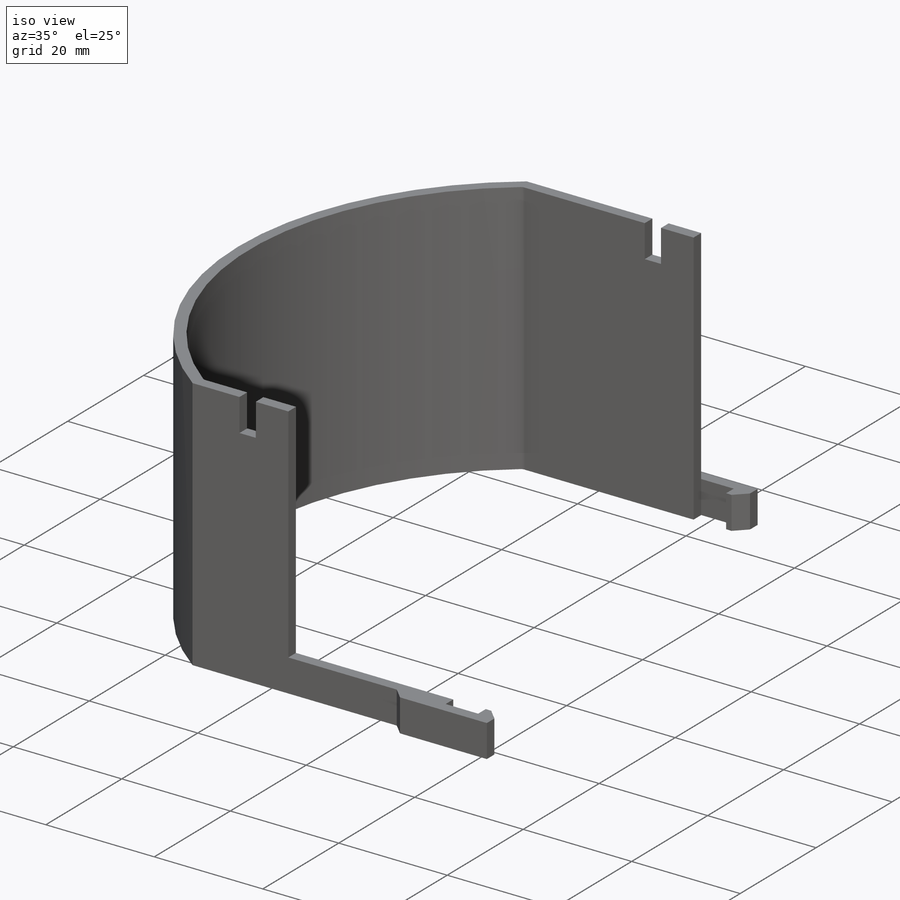
[diagram: iso view]
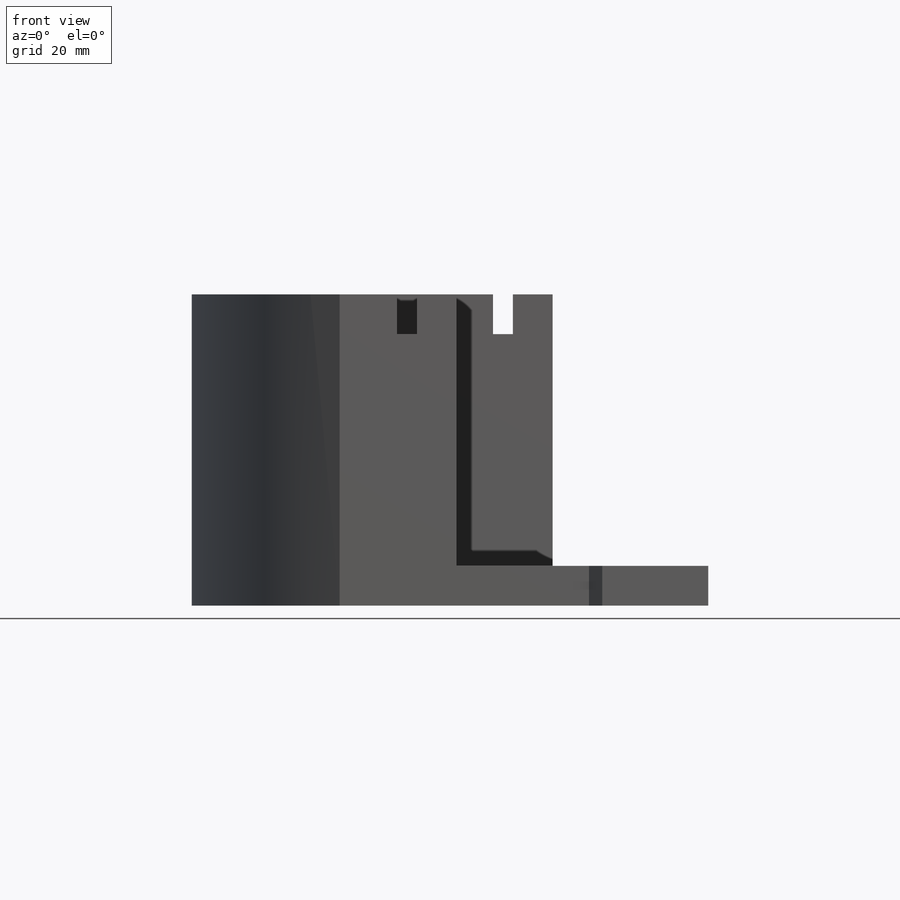
[diagram: front view]
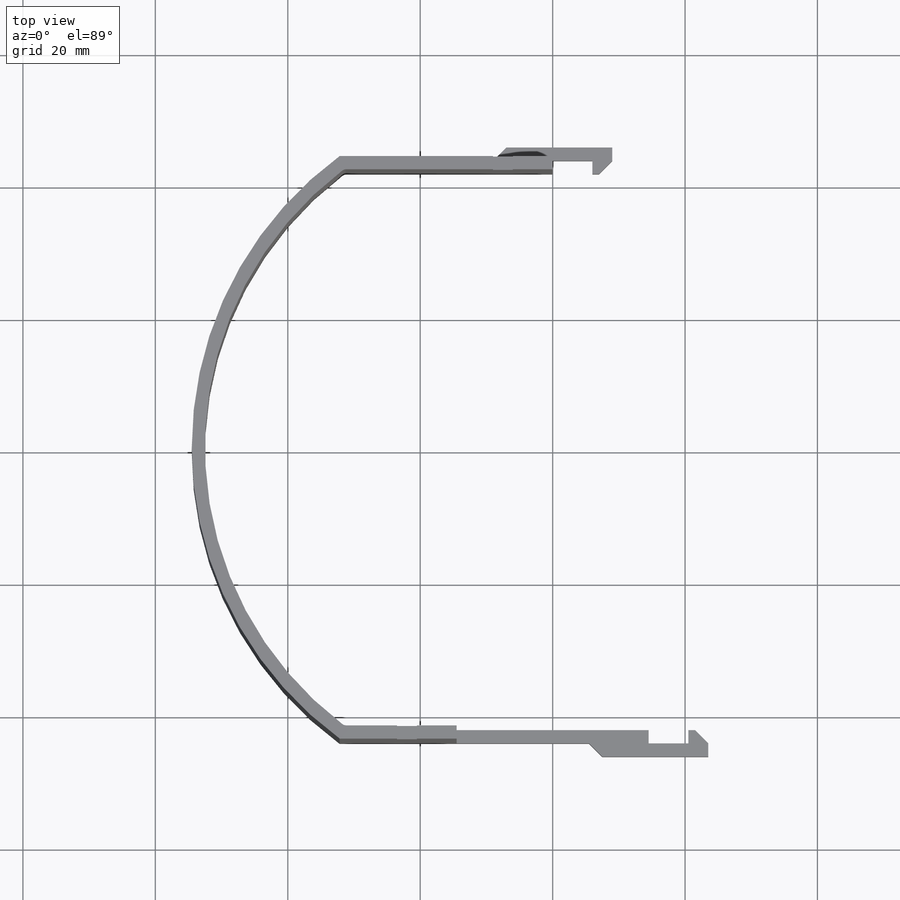
[diagram: top view]
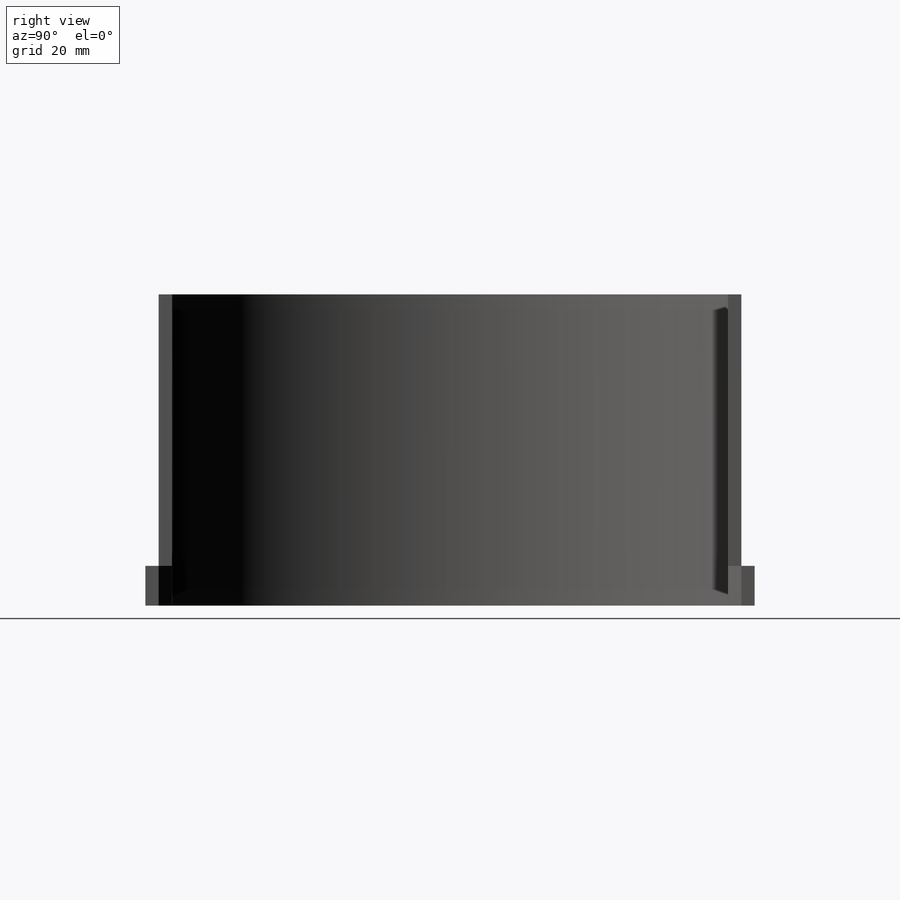
[diagram: right view]
SOLIDWORKS PART (.sldprt)
format: sldprt  version: not decoded by parser v0  size: 501,248 bytes
history: native  units: mm
features: sketch x22, cut_extrude x5, extrude x2, material x1, chamfer x1 + 1 further entry (+17 scaffold rows collapsed; 3 parser-record rows omitted)
feature tree (52):
  scaffold x17  (default folders/planes/origin — collapsed)
  material  "ABS"
  sketch  "Sketch1-a1_t42"  dims[D1=3.0mm]
  sketch  "Sketch2-a1_t42"  dims[D1=0.0mm D2=6.0mm]
  sketch  "Sketch3-a1_t42"
  sketch  "Sketch4-a1_t42"  dims[D1=0.0mm D2=2.0mm]
  sketch  "Sketch5-a1_t42"  dims[D1=0.0mm D2=2.925mm]
  sketch  "Sketch6-a1_t42"  dims[D1=20.15mm]
  sketch  "Sketch9-a1_t42"  dims[D1=1.5mm D2=31.9mm D3=38.75mm D4=~26.674948mm]
  sketch  "Sketch10-a1_t42"  dims[D1=4.0mm D2=4.0mm D3=3.0mm]
  sketch  "Sketch11-a1_t42"
  sketch  "Sketch12-a1_t42"  dims[D1=1.5mm D2=31.9mm D3=30.0mm D4=9.15mm]
  sketch  "Sketch13-a1_t42"  dims[D1=4.0mm D2=4.0mm D3=3.0mm]
  sketch  "Sketch14-a1_t42"
  sketch  "Sketch15-a1_t42"  dims[D1=1.575mm D2=31.9mm]
  sketch  "Sketch16-a1_t42"  dims[D1=4.0mm D2=3.0mm]
  sketch  "Sketch17-a1_t42"
  "a1_t42"
  parser-record x3  (decoder bookkeeping rows leaked as tree rows — omitted from the tree; the rows remain in map.json)
  sketch  "Sketch12"  dims[c1.D1=0.0mm c1.D2=0.0mm c2.D1=0.0mm c2.D2=0.0mm]
  extrude  "Shell Body"  Depth=47mm
  sketch  "Sketch13"  dims[c1.D1=6.0mm c1.D2=29.0mm c2.D1=6.0mm]
  cut_extrude  "Clearance - Fan"  [1 undecoded]
  sketch  "Sketch14"  dims[c1.D1=47.0mm c2.D1=90.0deg c3.D1=105.0mm]
  cut_extrude  "Clearance - Side 1"  [1 undecoded]
  sketch  "Sketch16"
  cut_extrude  "Clearance - Side 2"  [1 undecoded]
  sketch  "Sketch17"  dims[c1.D1=6.0mm c1.D2=6.0mm c1.D3=3.0mm c2.D2=6.0mm]
  cut_extrude  "Clearance - Clip 1"  [1 undecoded]
  sketch  "Sketch18"  dims[D1=6.0mm]
  cut_extrude  "Clearance - Clip 2"  [1 undecoded]
  sketch  "Sketch19"  dims[c1.D1=2.0mm c1.D2=9.0mm c1.D3=6.0mm c1.D4=3.0mm c1.D5=9.0mm c2.D2=9.0mm c2.D3=6.0mm c2.D5=9.0mm]
  extrude  "Tabs"  [1 undecoded]
  chamfer  "Tab Chamfers"  Distance=2mm Angle=45deg
decode coverage: 19 of 30 modeling features carry decoded parameters; 1 rows unclassified (native names shown)
note: ~ marks probable driven/reference dimensions
note: 6 parameter values undecoded
summary: no parameter record found for 6 features
note: suppression state not decoded; provenance and decode notes live in map.json
